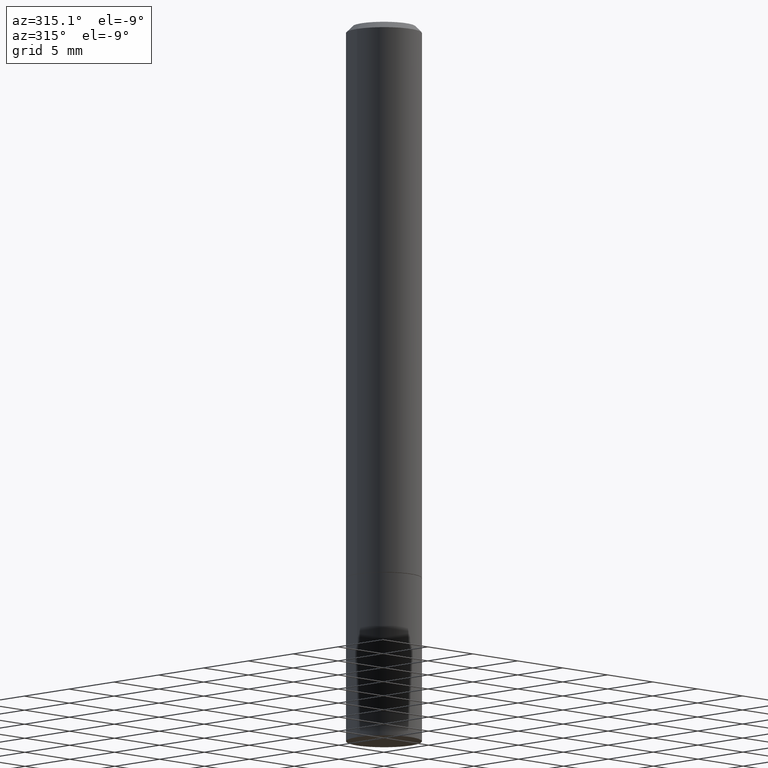
[diagram: clean part render]
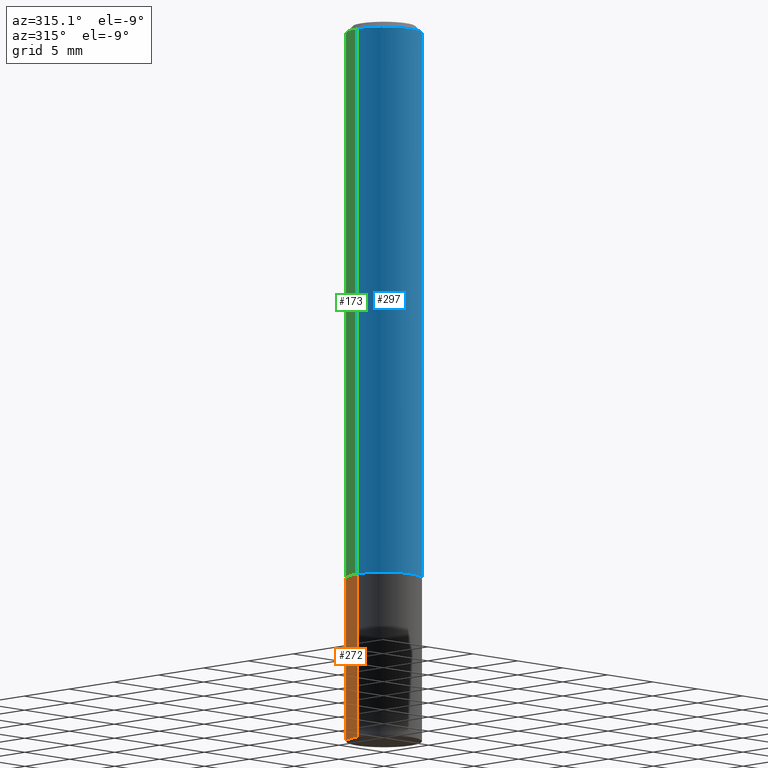
[diagram: same view with three faces highlighted in distinct colors, each labeled with its STEP entity id]
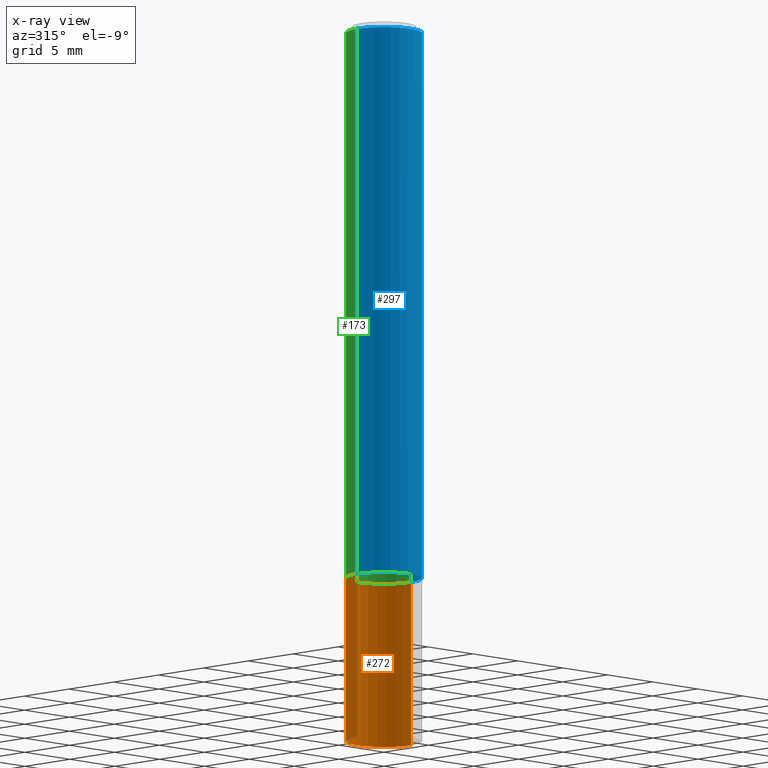
[diagram: x-ray of the same camera — body ghosted, the three highlighted faces saturated]
A machine part, auxiliary view with three faces highlighted in distinct colors.
The next image is the same camera in x-ray (body ghosted, the three faces saturated) — at least one of them is partly hidden behind the body in this view.
Their STEP definitions:

[orange] entity #272 — the highlighted cylindrical surface (partial cylindrical patch) has radius 2.9997 mm, axis along (-0, 0, 1).
#3 = CARTESIAN_POINT ( 'NONE',  ( 0.1181000000000000383, -8.659921164732650602E-15, -2.244099999999999984 ) ) ;
#13 = EDGE_CURVE ( 'NONE', #346, #133, #340, .T. ) ;
#19 = ORIENTED_EDGE ( 'NONE', *, *, #189, .F. ) ;
#38 = CARTESIAN_POINT ( 'NONE',  ( 0.1181000000000000383, -8.246878922347483612E-16, 5.758764772215001842E-30 ) ) ;
#48 = VERTEX_POINT ( 'NONE', #317 ) ;
#49 = DIRECTION ( 'NONE',  ( -2.445468806185136877E-29, 3.491481338843145188E-15, 1.000000000000000000 ) ) ;
#55 = EDGE_CURVE ( 'NONE', #346, #181, #207, .T. ) ;
#57 = CYLINDRICAL_SURFACE ( 'NONE', #122, 0.1181000000000000383 ) ;
#58 = AXIS2_PLACEMENT_3D ( 'NONE', #86, #195, #62 ) ;
#62 = DIRECTION ( 'NONE',  ( 1.000000000000000000, -6.982962677686270655E-15, 0.000000000000000000 ) ) ;
#64 = AXIS2_PLACEMENT_3D ( 'NONE', #107, #269, #245 ) ;
#86 = CARTESIAN_POINT ( 'NONE',  ( 5.487876547960064752E-29, -7.835233272497902340E-15, -2.244099999999999984 ) ) ;
#102 = CARTESIAN_POINT ( 'NONE',  ( 0.000000000000000000, 0.000000000000000000, 0.000000000000000000 ) ) ;
#107 = CARTESIAN_POINT ( 'NONE',  ( 4.236285612954512392E-29, -6.048293123277981078E-15, -1.732299999999999951 ) ) ;
#119 = ORIENTED_EDGE ( 'NONE', *, *, #13, .T. ) ;
#122 = AXIS2_PLACEMENT_3D ( 'NONE', #102, #332, #124 ) ;
#124 = DIRECTION ( 'NONE',  ( 1.000000000000000000, -6.982962677686266711E-15, 4.876176775795935793E-29 ) ) ;
#133 = VERTEX_POINT ( 'NONE', #327 ) ;
#135 = ORIENTED_EDGE ( 'NONE', *, *, #55, .F. ) ;
#144 = DIRECTION ( 'NONE',  ( -2.445468806185136877E-29, 3.491481338843145188E-15, 1.000000000000000000 ) ) ;
#162 = EDGE_LOOP ( 'NONE', ( #119, #168, #19, #135 ) ) ;
#165 = VECTOR ( 'NONE', #49, 39.37007874015748143 ) ;
#168 = ORIENTED_EDGE ( 'NONE', *, *, #223, .T. ) ;
#177 = VECTOR ( 'NONE', #144, 39.37007874015748143 ) ;
#181 = VERTEX_POINT ( 'NONE', #275 ) ;
#183 = CARTESIAN_POINT ( 'NONE',  ( -0.1181000000000000383, 8.391509709326785915E-16, -5.809262341591045886E-30 ) ) ;
#189 = EDGE_CURVE ( 'NONE', #181, #48, #217, .T. ) ;
#195 = DIRECTION ( 'NONE',  ( -2.445468806185136597E-29, 3.491481338843145583E-15, 1.000000000000000000 ) ) ;
#207 = LINE ( 'NONE', #38, #177 ) ;
#217 = CIRCLE ( 'NONE', #64, 0.1181000000000000383 ) ;
#223 = EDGE_CURVE ( 'NONE', #133, #48, #329, .T. ) ;
#245 = DIRECTION ( 'NONE',  ( 1.000000000000000000, -6.982962677686262766E-15, 0.000000000000000000 ) ) ;
#269 = DIRECTION ( 'NONE',  ( -2.445468806185136597E-29, 3.491481338843145583E-15, 1.000000000000000000 ) ) ;
#272 = ADVANCED_FACE ( 'NONE', ( #364 ), #57, .T. ) ;
#275 = CARTESIAN_POINT ( 'NONE',  ( 0.1181000000000000383, -6.872981015512729341E-15, -1.732299999999999951 ) ) ;
#317 = CARTESIAN_POINT ( 'NONE',  ( -0.1181000000000000383, -6.102612226955263117E-15, -1.732299999999999951 ) ) ;
#327 = CARTESIAN_POINT ( 'NONE',  ( -0.1181000000000000383, -6.102612226955263117E-15, -2.244099999999999984 ) ) ;
#329 = LINE ( 'NONE', #183, #165 ) ;
#332 = DIRECTION ( 'NONE',  ( -2.445468806185136597E-29, 3.491481338843145583E-15, 1.000000000000000000 ) ) ;
#340 = CIRCLE ( 'NONE', #58, 0.1181000000000000383 ) ;
#346 = VERTEX_POINT ( 'NONE', #3 ) ;
#364 = FACE_OUTER_BOUND ( 'NONE', #162, .T. ) ;

[blue] entity #297 — the highlighted cylindrical surface (partial cylindrical patch) has radius 2.9997 mm, axis along (-0, 0, 1).
#9 = CARTESIAN_POINT ( 'NONE',  ( 0.1180999999999999273, -8.246878922347475723E-16, 5.758764772214996937E-30 ) ) ;
#29 = EDGE_CURVE ( 'NONE', #293, #111, #241, .T. ) ;
#37 = ORIENTED_EDGE ( 'NONE', *, *, #249, .F. ) ;
#52 = DIRECTION ( 'NONE',  ( 1.000000000000000000, -6.982962677686266711E-15, 0.000000000000000000 ) ) ;
#56 = DIRECTION ( 'NONE',  ( -2.445468806185136877E-29, 3.491481338843145188E-15, 1.000000000000000000 ) ) ;
#60 = CARTESIAN_POINT ( 'NONE',  ( 4.890937612370292426E-31, -6.982962677686317493E-17, -0.02000000000000007674 ) ) ;
#65 = CARTESIAN_POINT ( 'NONE',  ( 0.1180999999999998301, -8.800544403136798514E-16, -0.02000000000000007674 ) ) ;
#76 = CARTESIAN_POINT ( 'NONE',  ( 0.000000000000000000, 0.000000000000000000, 0.000000000000000000 ) ) ;
#77 = CARTESIAN_POINT ( 'NONE',  ( -0.1181000000000000383, -2.218164663425319332E-15, -1.731299999999999839 ) ) ;
#103 = CARTESIAN_POINT ( 'NONE',  ( -0.1180999999999998301, 7.548582654578836825E-16, -0.02000000000000007674 ) ) ;
#111 = VERTEX_POINT ( 'NONE', #116 ) ;
#116 = CARTESIAN_POINT ( 'NONE',  ( 0.1181000000000000383, -6.869489534173886334E-15, -1.731299999999999839 ) ) ;
#129 = FACE_OUTER_BOUND ( 'NONE', #274, .T. ) ;
#132 = LINE ( 'NONE', #248, #312 ) ;
#143 = ORIENTED_EDGE ( 'NONE', *, *, #366, .T. ) ;
#179 = DIRECTION ( 'NONE',  ( 1.000000000000000000, -6.982962677686266711E-15, 4.876176775795935793E-29 ) ) ;
#180 = EDGE_CURVE ( 'NONE', #236, #350, #185, .T. ) ;
#182 = DIRECTION ( 'NONE',  ( -2.445468806185136597E-29, 3.491481338843145583E-15, 1.000000000000000000 ) ) ;
#185 = CIRCLE ( 'NONE', #197, 0.1180999999999998301 ) ;
#196 = CARTESIAN_POINT ( 'NONE',  ( 4.233840144148326789E-29, -6.044801641939137282E-15, -1.731299999999999839 ) ) ;
#197 = AXIS2_PLACEMENT_3D ( 'NONE', #60, #314, #52 ) ;
#203 = AXIS2_PLACEMENT_3D ( 'NONE', #76, #182, #179 ) ;
#214 = ORIENTED_EDGE ( 'NONE', *, *, #29, .T. ) ;
#228 = LINE ( 'NONE', #9, #304 ) ;
#231 = AXIS2_PLACEMENT_3D ( 'NONE', #196, #356, #262 ) ;
#236 = VERTEX_POINT ( 'NONE', #103 ) ;
#241 = CIRCLE ( 'NONE', #231, 0.1181000000000000383 ) ;
#248 = CARTESIAN_POINT ( 'NONE',  ( -0.1180999999999999273, 8.391509709326778027E-16, -5.809262341591040281E-30 ) ) ;
#249 = EDGE_CURVE ( 'NONE', #293, #236, #132, .T. ) ;
#262 = DIRECTION ( 'NONE',  ( 1.000000000000000000, -6.982962677686270655E-15, 0.000000000000000000 ) ) ;
#274 = EDGE_LOOP ( 'NONE', ( #37, #214, #143, #305 ) ) ;
#286 = DIRECTION ( 'NONE',  ( -2.445468806185136877E-29, 3.491481338843145188E-15, 1.000000000000000000 ) ) ;
#293 = VERTEX_POINT ( 'NONE', #77 ) ;
#297 = ADVANCED_FACE ( 'NONE', ( #129 ), #326, .T. ) ;
#304 = VECTOR ( 'NONE', #286, 39.37007874015748143 ) ;
#305 = ORIENTED_EDGE ( 'NONE', *, *, #180, .F. ) ;
#312 = VECTOR ( 'NONE', #56, 39.37007874015748143 ) ;
#314 = DIRECTION ( 'NONE',  ( -2.445468806185136597E-29, 3.491481338843145583E-15, 1.000000000000000000 ) ) ;
#326 = CYLINDRICAL_SURFACE ( 'NONE', #203, 0.1180999999999999273 ) ;
#350 = VERTEX_POINT ( 'NONE', #65 ) ;
#356 = DIRECTION ( 'NONE',  ( -2.445468806185136597E-29, 3.491481338843145583E-15, 1.000000000000000000 ) ) ;
#366 = EDGE_CURVE ( 'NONE', #111, #350, #228, .T. ) ;

[green] entity #173 — the highlighted cylindrical surface (partial cylindrical patch) has radius 2.9997 mm, axis along (-0, 0, 1).
#1 = CARTESIAN_POINT ( 'NONE',  ( 4.890937612370292426E-31, -6.982962677686317493E-17, -0.02000000000000007674 ) ) ;
#2 = CYLINDRICAL_SURFACE ( 'NONE', #16, 0.1180999999999999273 ) ;
#9 = CARTESIAN_POINT ( 'NONE',  ( 0.1180999999999999273, -8.246878922347475723E-16, 5.758764772214996937E-30 ) ) ;
#16 = AXIS2_PLACEMENT_3D ( 'NONE', #260, #130, #252 ) ;
#26 = DIRECTION ( 'NONE',  ( 1.000000000000000000, -6.982962677686266711E-15, 0.000000000000000000 ) ) ;
#56 = DIRECTION ( 'NONE',  ( -2.445468806185136877E-29, 3.491481338843145188E-15, 1.000000000000000000 ) ) ;
#65 = CARTESIAN_POINT ( 'NONE',  ( 0.1180999999999998301, -8.800544403136798514E-16, -0.02000000000000007674 ) ) ;
#69 = AXIS2_PLACEMENT_3D ( 'NONE', #1, #267, #26 ) ;
#77 = CARTESIAN_POINT ( 'NONE',  ( -0.1181000000000000383, -2.218164663425319332E-15, -1.731299999999999839 ) ) ;
#80 = AXIS2_PLACEMENT_3D ( 'NONE', #191, #110, #222 ) ;
#87 = CIRCLE ( 'NONE', #80, 0.1181000000000000383 ) ;
#103 = CARTESIAN_POINT ( 'NONE',  ( -0.1180999999999998301, 7.548582654578836825E-16, -0.02000000000000007674 ) ) ;
#110 = DIRECTION ( 'NONE',  ( -2.445468806185136597E-29, 3.491481338843145583E-15, 1.000000000000000000 ) ) ;
#111 = VERTEX_POINT ( 'NONE', #116 ) ;
#116 = CARTESIAN_POINT ( 'NONE',  ( 0.1181000000000000383, -6.869489534173886334E-15, -1.731299999999999839 ) ) ;
#128 = ORIENTED_EDGE ( 'NONE', *, *, #249, .T. ) ;
#130 = DIRECTION ( 'NONE',  ( -2.445468806185136597E-29, 3.491481338843145583E-15, 1.000000000000000000 ) ) ;
#132 = LINE ( 'NONE', #248, #312 ) ;
#138 = ORIENTED_EDGE ( 'NONE', *, *, #366, .F. ) ;
#173 = ADVANCED_FACE ( 'NONE', ( #247 ), #2, .T. ) ;
#191 = CARTESIAN_POINT ( 'NONE',  ( 4.233840144148326789E-29, -6.044801641939137282E-15, -1.731299999999999839 ) ) ;
#222 = DIRECTION ( 'NONE',  ( 1.000000000000000000, -6.982962677686270655E-15, 0.000000000000000000 ) ) ;
#228 = LINE ( 'NONE', #9, #304 ) ;
#236 = VERTEX_POINT ( 'NONE', #103 ) ;
#242 = CIRCLE ( 'NONE', #69, 0.1180999999999998301 ) ;
#244 = EDGE_LOOP ( 'NONE', ( #255, #128, #328, #138 ) ) ;
#247 = FACE_OUTER_BOUND ( 'NONE', #244, .T. ) ;
#248 = CARTESIAN_POINT ( 'NONE',  ( -0.1180999999999999273, 8.391509709326778027E-16, -5.809262341591040281E-30 ) ) ;
#249 = EDGE_CURVE ( 'NONE', #293, #236, #132, .T. ) ;
#252 = DIRECTION ( 'NONE',  ( 1.000000000000000000, -6.982962677686266711E-15, 4.876176775795935793E-29 ) ) ;
#253 = EDGE_CURVE ( 'NONE', #350, #236, #242, .T. ) ;
#255 = ORIENTED_EDGE ( 'NONE', *, *, #324, .T. ) ;
#260 = CARTESIAN_POINT ( 'NONE',  ( 0.000000000000000000, 0.000000000000000000, 0.000000000000000000 ) ) ;
#267 = DIRECTION ( 'NONE',  ( -2.445468806185136597E-29, 3.491481338843145583E-15, 1.000000000000000000 ) ) ;
#286 = DIRECTION ( 'NONE',  ( -2.445468806185136877E-29, 3.491481338843145188E-15, 1.000000000000000000 ) ) ;
#293 = VERTEX_POINT ( 'NONE', #77 ) ;
#304 = VECTOR ( 'NONE', #286, 39.37007874015748143 ) ;
#312 = VECTOR ( 'NONE', #56, 39.37007874015748143 ) ;
#324 = EDGE_CURVE ( 'NONE', #111, #293, #87, .T. ) ;
#328 = ORIENTED_EDGE ( 'NONE', *, *, #253, .F. ) ;
#350 = VERTEX_POINT ( 'NONE', #65 ) ;
#366 = EDGE_CURVE ( 'NONE', #111, #350, #228, .T. ) ;